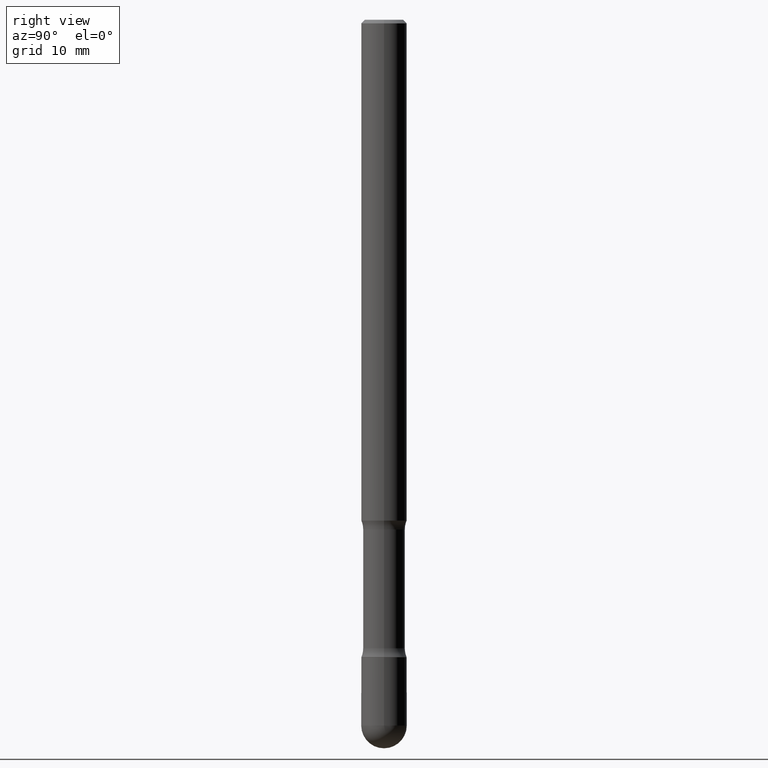
[diagram: clean part render]
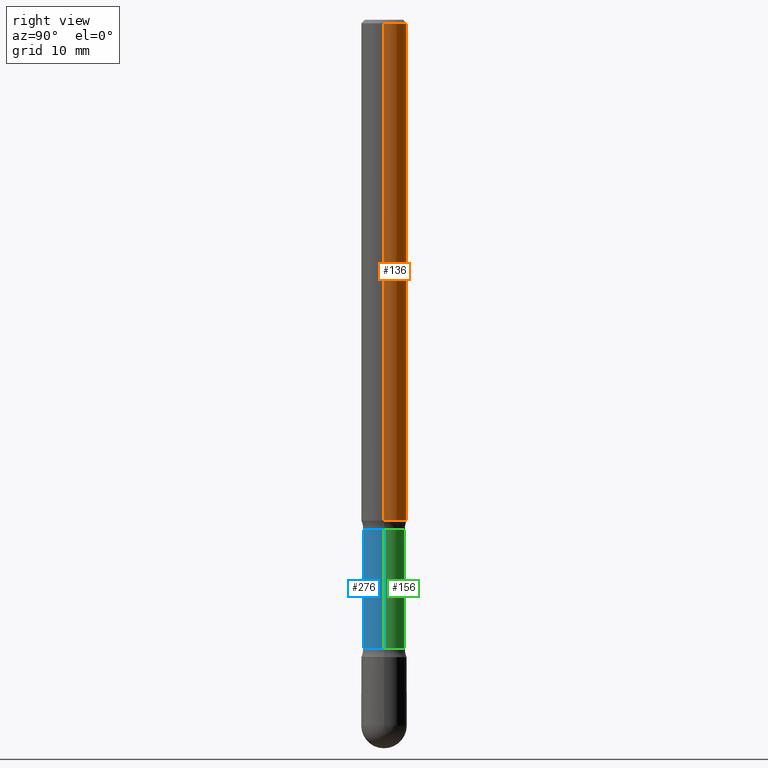
[diagram: same view with three faces highlighted in distinct colors, each labeled with its STEP entity id]
A machine part, right view with three faces highlighted in distinct colors.
Their STEP definitions:

[orange] entity #136 — the highlighted cylindrical surface (edge-blend (fillet) strip) has radius 3.175 mm, axis along (0, -0, -1).
#33 = LINE ( 'NONE', #375, #96 ) ;
#36 = CARTESIAN_POINT ( 'NONE',  ( 0.1249999999999996947, -9.273918764983033630E-16, -0.02000000000000033348 ) ) ;
#46 = DIRECTION ( 'NONE',  ( 2.445468806185136597E-29, -3.491481338843145583E-15, -1.000000000000000000 ) ) ;
#53 = CARTESIAN_POINT ( 'NONE',  ( -0.1250000000000000278, -8.728703347107872831E-15, -2.750000000000001332 ) ) ;
#57 = VERTEX_POINT ( 'NONE', #36 ) ;
#68 = DIRECTION ( 'NONE',  ( 2.445468806185136877E-29, -3.491481338843145188E-15, -1.000000000000000000 ) ) ;
#75 = LINE ( 'NONE', #542, #368 ) ;
#83 = CARTESIAN_POINT ( 'NONE',  ( 8.559140821647976968E-29, -1.222018468595100619E-14, -3.499999999999999112 ) ) ;
#96 = VECTOR ( 'NONE', #378, 39.37007874015748143 ) ;
#107 = VERTEX_POINT ( 'NONE', #169 ) ;
#136 = ADVANCED_FACE ( 'NONE', ( #430 ), #432, .T. ) ;
#144 = EDGE_LOOP ( 'NONE', ( #277, #452, #424, #407 ) ) ;
#146 = EDGE_CURVE ( 'NONE', #450, #57, #419, .T. ) ;
#148 = AXIS2_PLACEMENT_3D ( 'NONE', #83, #46, #563 ) ;
#169 = CARTESIAN_POINT ( 'NONE',  ( 0.1250000000000000278, -5.693263904019194869E-15, -2.750000000000001332 ) ) ;
#220 = DIRECTION ( 'NONE',  ( 2.445468806185136597E-29, -3.491481338843145583E-15, -1.000000000000000000 ) ) ;
#260 = AXIS2_PLACEMENT_3D ( 'NONE', #328, #453, #415 ) ;
#277 = ORIENTED_EDGE ( 'NONE', *, *, #146, .T. ) ;
#281 = VERTEX_POINT ( 'NONE', #53 ) ;
#328 = CARTESIAN_POINT ( 'NONE',  ( 6.725039217009129004E-29, -9.601573681818656170E-15, -2.750000000000001332 ) ) ;
#368 = VECTOR ( 'NONE', #68, 39.37007874015748143 ) ;
#375 = CARTESIAN_POINT ( 'NONE',  ( 0.1249999999999998612, -1.307774693567244763E-14, -3.499999999999999112 ) ) ;
#378 = DIRECTION ( 'NONE',  ( 2.445468806185136877E-29, -3.491481338843145188E-15, -1.000000000000000000 ) ) ;
#407 = ORIENTED_EDGE ( 'NONE', *, *, #416, .F. ) ;
#415 = DIRECTION ( 'NONE',  ( -1.000000000000000000, 6.982962677686269077E-15, 0.000000000000000000 ) ) ;
#416 = EDGE_CURVE ( 'NONE', #450, #281, #75, .T. ) ;
#417 = CARTESIAN_POINT ( 'NONE',  ( -0.1249999999999996947, 8.030407079339170824E-16, -0.02000000000000033348 ) ) ;
#419 = CIRCLE ( 'NONE', #463, 0.1249999999999996947 ) ;
#424 = ORIENTED_EDGE ( 'NONE', *, *, #501, .F. ) ;
#430 = FACE_OUTER_BOUND ( 'NONE', #144, .T. ) ;
#432 = CYLINDRICAL_SURFACE ( 'NONE', #148, 0.1249999999999998612 ) ;
#450 = VERTEX_POINT ( 'NONE', #417 ) ;
#452 = ORIENTED_EDGE ( 'NONE', *, *, #460, .T. ) ;
#453 = DIRECTION ( 'NONE',  ( 2.445468806185136597E-29, -3.491481338843145583E-15, -1.000000000000000000 ) ) ;
#460 = EDGE_CURVE ( 'NONE', #57, #107, #33, .T. ) ;
#463 = AXIS2_PLACEMENT_3D ( 'NONE', #474, #220, #518 ) ;
#474 = CARTESIAN_POINT ( 'NONE',  ( 4.890937612370354609E-31, -6.982962677686407473E-17, -0.02000000000000033348 ) ) ;
#496 = CIRCLE ( 'NONE', #260, 0.1250000000000000278 ) ;
#501 = EDGE_CURVE ( 'NONE', #281, #107, #496, .T. ) ;
#518 = DIRECTION ( 'NONE',  ( -1.000000000000000000, 6.982962677686266711E-15, 0.000000000000000000 ) ) ;
#542 = CARTESIAN_POINT ( 'NONE',  ( -0.1249999999999998612, -1.134731435124022443E-14, -3.499999999999999112 ) ) ;
#563 = DIRECTION ( 'NONE',  ( -1.000000000000000000, 6.982962677686270655E-15, 0.000000000000000000 ) ) ;

[blue] entity #276 — the highlighted cylindrical surface (edge-blend (fillet) strip) has radius 2.921 mm, axis along (0, -0, -1).
#25 = ORIENTED_EDGE ( 'NONE', *, *, #79, .T. ) ;
#29 = EDGE_CURVE ( 'NONE', #254, #181, #164, .T. ) ;
#34 = VERTEX_POINT ( 'NONE', #337 ) ;
#60 = CARTESIAN_POINT ( 'NONE',  ( 8.559140821647976968E-29, -1.222018468595100619E-14, -3.499999999999999112 ) ) ;
#67 = CIRCLE ( 'NONE', #138, 0.1149999999999996303 ) ;
#79 = EDGE_CURVE ( 'NONE', #254, #126, #67, .T. ) ;
#84 = AXIS2_PLACEMENT_3D ( 'NONE', #449, #362, #98 ) ;
#98 = DIRECTION ( 'NONE',  ( -1.000000000000000000, 6.982962677686269077E-15, 0.000000000000000000 ) ) ;
#104 = AXIS2_PLACEMENT_3D ( 'NONE', #60, #194, #197 ) ;
#109 = CARTESIAN_POINT ( 'NONE',  ( -0.1149999999999995748, -1.141714397801708930E-14, -3.499999999999999112 ) ) ;
#126 = VERTEX_POINT ( 'NONE', #223 ) ;
#138 = AXIS2_PLACEMENT_3D ( 'NONE', #322, #490, #508 ) ;
#145 = CYLINDRICAL_SURFACE ( 'NONE', #104, 0.1149999999999995748 ) ;
#164 = LINE ( 'NONE', #539, #436 ) ;
#181 = VERTEX_POINT ( 'NONE', #341 ) ;
#194 = DIRECTION ( 'NONE',  ( 2.445468806185136597E-29, -3.491481338843145583E-15, -1.000000000000000000 ) ) ;
#197 = DIRECTION ( 'NONE',  ( -1.000000000000000000, 6.982962677686265922E-15, 0.000000000000000000 ) ) ;
#223 = CARTESIAN_POINT ( 'NONE',  ( -0.1149999999999996303, -8.969579928417037109E-15, -2.798989794855663682 ) ) ;
#232 = ORIENTED_EDGE ( 'NONE', *, *, #293, .F. ) ;
#254 = VERTEX_POINT ( 'NONE', #272 ) ;
#272 = CARTESIAN_POINT ( 'NONE',  ( 0.1149999999999996303, -1.051035691881738827E-14, -2.798989794855663682 ) ) ;
#276 = ADVANCED_FACE ( 'NONE', ( #441 ), #145, .T. ) ;
#285 = EDGE_CURVE ( 'NONE', #126, #34, #451, .T. ) ;
#293 = EDGE_CURVE ( 'NONE', #181, #34, #297, .T. ) ;
#297 = CIRCLE ( 'NONE', #84, 0.1149999999999995193 ) ;
#322 = CARTESIAN_POINT ( 'NONE',  ( 6.844842232150059621E-29, -9.772620636350953994E-15, -2.798989794855663682 ) ) ;
#337 = CARTESIAN_POINT ( 'NONE',  ( -0.1149999999999995193, -1.124609702348478517E-14, -3.451010205144335430 ) ) ;
#341 = CARTESIAN_POINT ( 'NONE',  ( 0.1149999999999995193, -1.169983645362854980E-14, -3.451010205144335430 ) ) ;
#356 = DIRECTION ( 'NONE',  ( 2.445468806185136877E-29, -3.491481338843145188E-15, -1.000000000000000000 ) ) ;
#362 = DIRECTION ( 'NONE',  ( 2.445468806185136597E-29, -3.491481338843145583E-15, -1.000000000000000000 ) ) ;
#393 = EDGE_LOOP ( 'NONE', ( #562, #25, #523, #232 ) ) ;
#420 = VECTOR ( 'NONE', #356, 39.37007874015748143 ) ;
#436 = VECTOR ( 'NONE', #503, 39.37007874015748143 ) ;
#441 = FACE_OUTER_BOUND ( 'NONE', #393, .T. ) ;
#449 = CARTESIAN_POINT ( 'NONE',  ( 8.439337806507040746E-29, -1.204913773141870205E-14, -3.451010205144335430 ) ) ;
#451 = LINE ( 'NONE', #109, #420 ) ;
#490 = DIRECTION ( 'NONE',  ( 2.445468806185136597E-29, -3.491481338843145583E-15, -1.000000000000000000 ) ) ;
#503 = DIRECTION ( 'NONE',  ( 2.445468806185136877E-29, -3.491481338843145188E-15, -1.000000000000000000 ) ) ;
#508 = DIRECTION ( 'NONE',  ( -1.000000000000000000, 6.982962677686261977E-15, 0.000000000000000000 ) ) ;
#523 = ORIENTED_EDGE ( 'NONE', *, *, #285, .T. ) ;
#539 = CARTESIAN_POINT ( 'NONE',  ( 0.1149999999999995748, -1.300914195569473112E-14, -3.499999999999999112 ) ) ;
#562 = ORIENTED_EDGE ( 'NONE', *, *, #29, .F. ) ;

[green] entity #156 — the highlighted cylindrical surface (edge-blend (fillet) strip) has radius 2.921 mm, axis along (0, -0, -1).
#23 = DIRECTION ( 'NONE',  ( 2.445468806185136597E-29, -3.491481338843145583E-15, -1.000000000000000000 ) ) ;
#29 = EDGE_CURVE ( 'NONE', #254, #181, #164, .T. ) ;
#34 = VERTEX_POINT ( 'NONE', #337 ) ;
#39 = DIRECTION ( 'NONE',  ( 2.445468806185136597E-29, -3.491481338843145583E-15, -1.000000000000000000 ) ) ;
#109 = CARTESIAN_POINT ( 'NONE',  ( -0.1149999999999995748, -1.141714397801708930E-14, -3.499999999999999112 ) ) ;
#124 = AXIS2_PLACEMENT_3D ( 'NONE', #411, #23, #330 ) ;
#126 = VERTEX_POINT ( 'NONE', #223 ) ;
#156 = ADVANCED_FACE ( 'NONE', ( #176 ), #466, .T. ) ;
#157 = DIRECTION ( 'NONE',  ( -1.000000000000000000, 6.982962677686269077E-15, 0.000000000000000000 ) ) ;
#164 = LINE ( 'NONE', #539, #436 ) ;
#176 = FACE_OUTER_BOUND ( 'NONE', #464, .T. ) ;
#181 = VERTEX_POINT ( 'NONE', #341 ) ;
#202 = ORIENTED_EDGE ( 'NONE', *, *, #531, .F. ) ;
#215 = CIRCLE ( 'NONE', #332, 0.1149999999999995193 ) ;
#223 = CARTESIAN_POINT ( 'NONE',  ( -0.1149999999999996303, -8.969579928417037109E-15, -2.798989794855663682 ) ) ;
#254 = VERTEX_POINT ( 'NONE', #272 ) ;
#272 = CARTESIAN_POINT ( 'NONE',  ( 0.1149999999999996303, -1.051035691881738827E-14, -2.798989794855663682 ) ) ;
#285 = EDGE_CURVE ( 'NONE', #126, #34, #451, .T. ) ;
#296 = DIRECTION ( 'NONE',  ( 2.445468806185136597E-29, -3.491481338843145583E-15, -1.000000000000000000 ) ) ;
#321 = AXIS2_PLACEMENT_3D ( 'NONE', #434, #39, #552 ) ;
#330 = DIRECTION ( 'NONE',  ( -1.000000000000000000, 6.982962677686261977E-15, 0.000000000000000000 ) ) ;
#332 = AXIS2_PLACEMENT_3D ( 'NONE', #418, #296, #157 ) ;
#337 = CARTESIAN_POINT ( 'NONE',  ( -0.1149999999999995193, -1.124609702348478517E-14, -3.451010205144335430 ) ) ;
#341 = CARTESIAN_POINT ( 'NONE',  ( 0.1149999999999995193, -1.169983645362854980E-14, -3.451010205144335430 ) ) ;
#356 = DIRECTION ( 'NONE',  ( 2.445468806185136877E-29, -3.491481338843145188E-15, -1.000000000000000000 ) ) ;
#365 = ORIENTED_EDGE ( 'NONE', *, *, #29, .T. ) ;
#370 = CIRCLE ( 'NONE', #124, 0.1149999999999996303 ) ;
#372 = ORIENTED_EDGE ( 'NONE', *, *, #519, .T. ) ;
#411 = CARTESIAN_POINT ( 'NONE',  ( 6.844842232150059621E-29, -9.772620636350953994E-15, -2.798989794855663682 ) ) ;
#418 = CARTESIAN_POINT ( 'NONE',  ( 8.439337806507040746E-29, -1.204913773141870205E-14, -3.451010205144335430 ) ) ;
#420 = VECTOR ( 'NONE', #356, 39.37007874015748143 ) ;
#434 = CARTESIAN_POINT ( 'NONE',  ( 8.559140821647976968E-29, -1.222018468595100619E-14, -3.499999999999999112 ) ) ;
#436 = VECTOR ( 'NONE', #503, 39.37007874015748143 ) ;
#451 = LINE ( 'NONE', #109, #420 ) ;
#464 = EDGE_LOOP ( 'NONE', ( #372, #365, #202, #559 ) ) ;
#466 = CYLINDRICAL_SURFACE ( 'NONE', #321, 0.1149999999999995748 ) ;
#503 = DIRECTION ( 'NONE',  ( 2.445468806185136877E-29, -3.491481338843145188E-15, -1.000000000000000000 ) ) ;
#519 = EDGE_CURVE ( 'NONE', #126, #254, #370, .T. ) ;
#531 = EDGE_CURVE ( 'NONE', #34, #181, #215, .T. ) ;
#539 = CARTESIAN_POINT ( 'NONE',  ( 0.1149999999999995748, -1.300914195569473112E-14, -3.499999999999999112 ) ) ;
#552 = DIRECTION ( 'NONE',  ( -1.000000000000000000, 6.982962677686265922E-15, 0.000000000000000000 ) ) ;
#559 = ORIENTED_EDGE ( 'NONE', *, *, #285, .F. ) ;